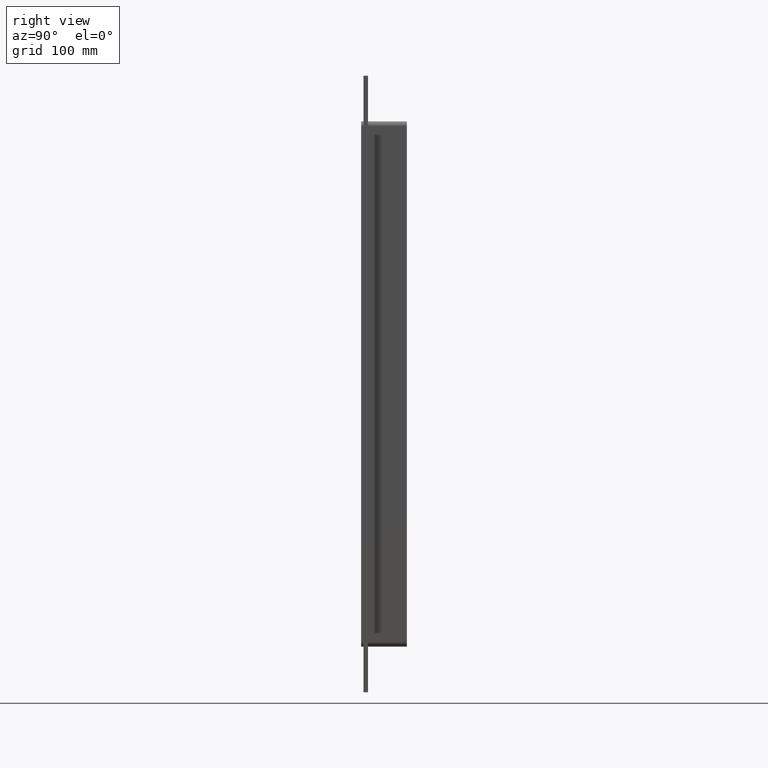
[diagram: clean part render]
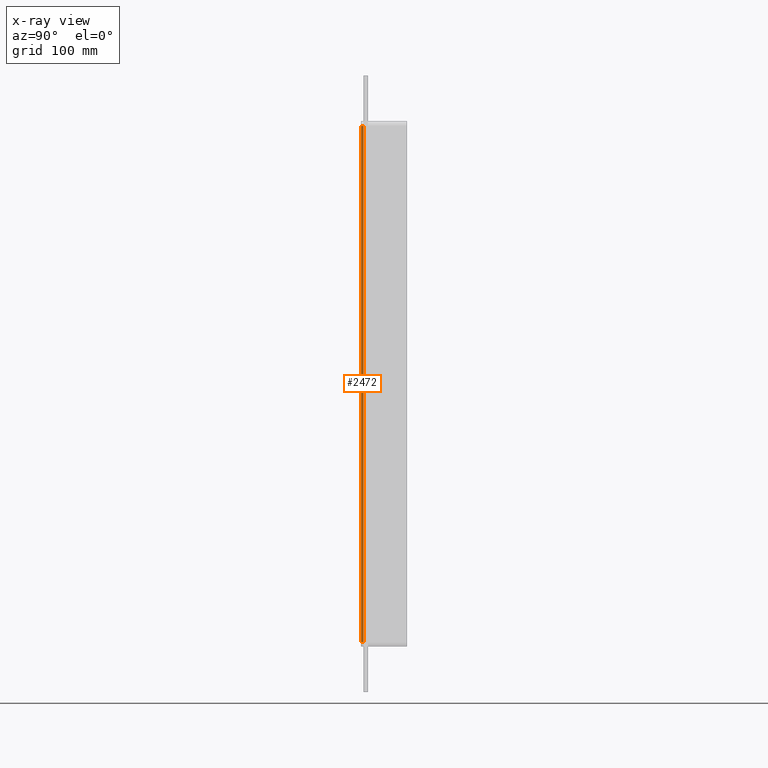
[diagram: x-ray — body ghosted, one internal face saturated and labeled with its STEP entity id]
A machine part, right view, then the same camera in x-ray: the body is ghosted and one INTERNAL B-rep face — a face not visible from any outside direction — is saturated and labeled: STEP entity #2472.
In plain terms, the highlighted planar face has unit normal (-1, 0, 0).
Its self-contained STEP definition (entity closure, byte-faithful):
#1475=CARTESIAN_POINT('',(-196.75000000000006,-3.0,339.0));
#1476=VERTEX_POINT('',#1475);
#1484=CARTESIAN_POINT('',(-196.75000000000006,-3.0,-339.00000000000006));
#1485=VERTEX_POINT('',#1484);
#1486=CARTESIAN_POINT('',(-196.75000000000006,-3.0,338.99999999999994));
#1487=DIRECTION('',(0.0,0.0,-1.0));
#1488=VECTOR('',#1487,678.0);
#1489=LINE('',#1486,#1488);
#1490=EDGE_CURVE('',#1476,#1485,#1489,.T.);
#2125=CARTESIAN_POINT('',(-196.75000000000006,0.0,-339.00000000000006));
#2126=VERTEX_POINT('',#2125);
#2136=CARTESIAN_POINT('',(-196.75000000000006,0.0,339.00000000000006));
#2137=VERTEX_POINT('',#2136);
#2138=CARTESIAN_POINT('',(-196.75000000000006,0.0,339.00000000000006));
#2139=DIRECTION('',(0.0,0.0,-1.0));
#2140=VECTOR('',#2139,678.00000000000011);
#2141=LINE('',#2138,#2140);
#2142=EDGE_CURVE('',#2137,#2126,#2141,.T.);
#2411=CARTESIAN_POINT('',(-196.75000000000006,0.0,339.00000000000006));
#2412=DIRECTION('',(0.0,-1.0,0.0));
#2413=VECTOR('',#2412,3.0);
#2414=LINE('',#2411,#2413);
#2415=EDGE_CURVE('',#2137,#1476,#2414,.T.);
#2456=CARTESIAN_POINT('',(-196.75000000000006,0.0,-345.00000000000006));
#2457=DIRECTION('',(-1.0,0.0,0.0));
#2458=DIRECTION('',(0.0,0.0,1.0));
#2459=AXIS2_PLACEMENT_3D('',#2456,#2457,#2458);
#2460=PLANE('',#2459);
#2461=ORIENTED_EDGE('',*,*,#2142,.T.);
#2462=CARTESIAN_POINT('',(-196.75000000000006,-3.0,-339.00000000000006));
#2463=DIRECTION('',(0.0,1.0,0.0));
#2464=VECTOR('',#2463,3.0);
#2465=LINE('',#2462,#2464);
#2466=EDGE_CURVE('',#1485,#2126,#2465,.T.);
#2467=ORIENTED_EDGE('',*,*,#2466,.F.);
#2468=ORIENTED_EDGE('',*,*,#1490,.F.);
#2469=ORIENTED_EDGE('',*,*,#2415,.F.);
#2470=EDGE_LOOP('',(#2461,#2467,#2468,#2469));
#2471=FACE_OUTER_BOUND('',#2470,.T.);
#2472=ADVANCED_FACE('',(#2471),#2460,.T.);